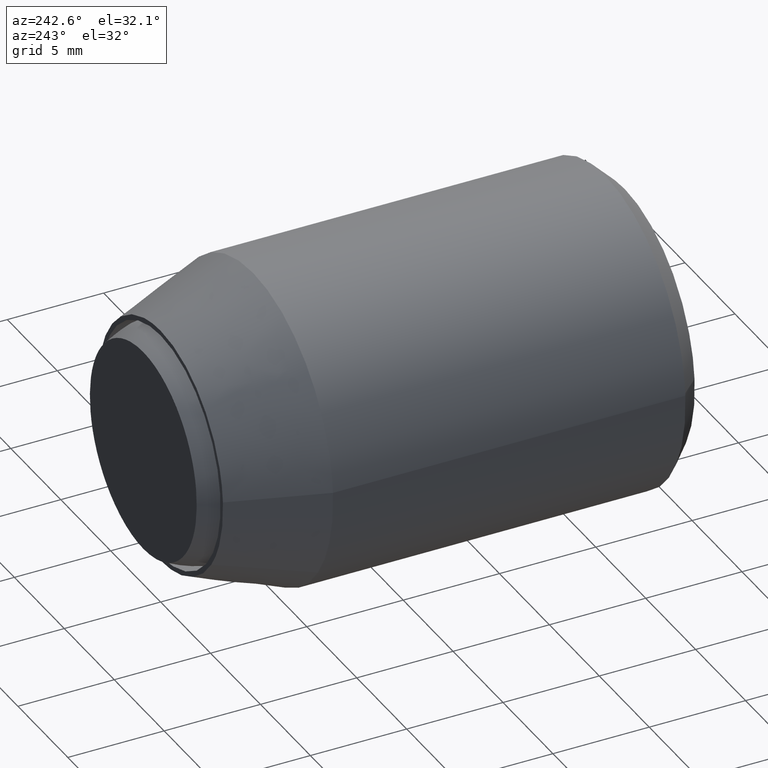
[diagram: clean part render]
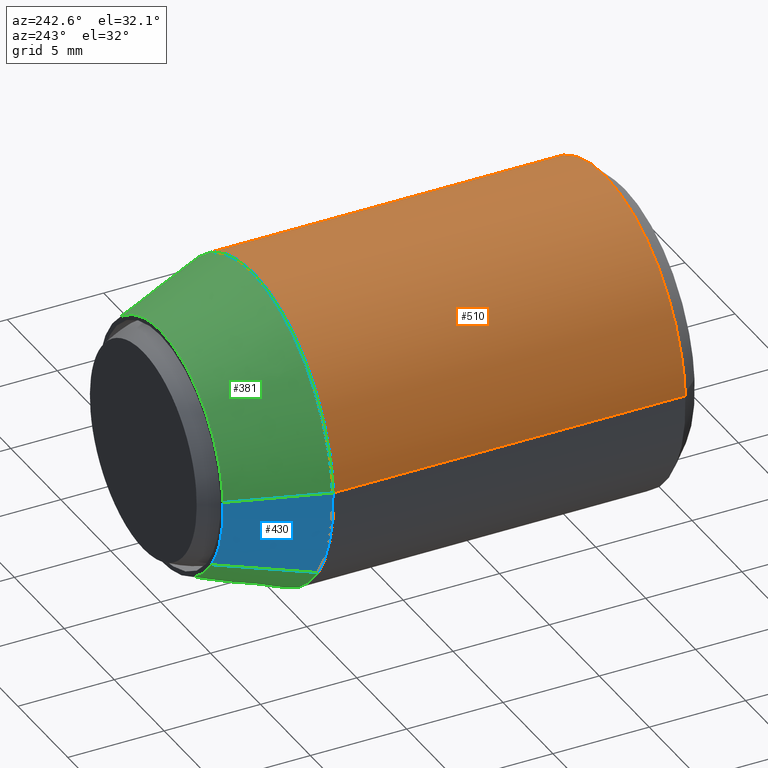
[diagram: same view with three faces highlighted in distinct colors, each labeled with its STEP entity id]
A machine part, auxiliary view with three faces highlighted in distinct colors.
Their STEP definitions:

[orange] entity #510 — the highlighted face is a freeform B-spline surface patch.
#305=CARTESIAN_POINT('',(-7.985078611291660,-4.808085996040576,0.488384631610957));
#306=VERTEX_POINT('',#305);
#312=CARTESIAN_POINT('',(0.0,-4.808085999999999,7.999999999999998));
#313=VERTEX_POINT('',#312);
#314=CARTESIAN_POINT('',(0.0,-4.808085999999999,7.999999999999998));
#315=CARTESIAN_POINT('',(-7.525652014319042,-4.808086000000000,7.999999999999999));
#316=CARTESIAN_POINT('',(-7.985078611291660,-4.808085996040576,0.488384631610957));
#324=(BOUNDED_CURVE()B_SPLINE_CURVE(2,(#314,#315,#316),.UNSPECIFIED.,.F.,.U.)B_SPLINE_CURVE_WITH_KNOTS((3,3),(0.500000000000000,0.739333041860781),.UNSPECIFIED.)CURVE()GEOMETRIC_REPRESENTATION_ITEM()RATIONAL_B_SPLINE_CURVE((1.0,0.719603900003925,0.976072212311532))REPRESENTATION_ITEM(''));
#325=EDGE_CURVE('',#313,#306,#324,.T.);
#327=CARTESIAN_POINT('',(7.947753822738545,-4.808085999999999,0.912802921302848));
#328=VERTEX_POINT('',#327);
#329=CARTESIAN_POINT('',(7.947753822738544,-4.808086000000000,0.912802921302848));
#330=CARTESIAN_POINT('',(7.133786211062851,-4.808085999999999,7.999999999999999));
#331=CARTESIAN_POINT('',(0.0,-4.808085999999999,7.999999999999998));
#339=(BOUNDED_CURVE()B_SPLINE_CURVE(2,(#329,#330,#331),.UNSPECIFIED.,.F.,.U.)B_SPLINE_CURVE_WITH_KNOTS((3,3),(0.269767704844007,0.500000000000000),.UNSPECIFIED.)CURVE()GEOMETRIC_REPRESENTATION_ITEM()RATIONAL_B_SPLINE_CURVE((0.957343837127389,0.730266087987810,1.0))REPRESENTATION_ITEM(''));
#340=EDGE_CURVE('',#328,#313,#339,.T.);
#431=CARTESIAN_POINT('',(7.947753547485708,-4.350788149999998,0.912805317922882));
#432=CARTESIAN_POINT('',(7.182521220688651,-4.350788149999996,7.575647679305657));
#433=CARTESIAN_POINT('',(0.488388316278856,-4.350788149999998,7.985078387374933));
#434=CARTESIAN_POINT('',(-7.496690071096078,-4.350788149999999,8.473466703653788));
#435=CARTESIAN_POINT('',(-7.985078387374934,-4.350788149999998,0.488388316278855));
#436=CARTESIAN_POINT('',(7.947753547485708,-23.568730296249999,0.912805317922882));
#437=CARTESIAN_POINT('',(7.182521220688651,-23.568730296249999,7.575647679305657));
#438=CARTESIAN_POINT('',(0.488388316278856,-23.568730296249999,7.985078387374933));
#439=CARTESIAN_POINT('',(-7.496690071096078,-23.568730296249999,8.473466703653788));
#440=CARTESIAN_POINT('',(-7.985078387374934,-23.568730296249999,0.488388316278855));
#448=(BOUNDED_SURFACE()B_SPLINE_SURFACE(2,1,((#431,#436),(#432,#437),(#433,#438),(#434,#439),(#435,#440)),.UNSPECIFIED.,.F.,.F.,.U.)B_SPLINE_SURFACE_WITH_KNOTS((3,2,3),(2,2),(0.0,11.664253916426350,24.919087912365391),(0.0,19.217942146250000),.UNSPECIFIED.)GEOMETRIC_REPRESENTATION_ITEM()RATIONAL_B_SPLINE_SURFACE(((0.938140952186599,0.938140952186599),(0.742253967444162,0.742253967444162),(1.0,1.0),(0.707106781186548,0.707106781186548),(1.0,1.0)))REPRESENTATION_ITEM('')SURFACE());
#449=CARTESIAN_POINT('',(7.947753547484348,-23.100000000000001,0.912805317934730));
#450=VERTEX_POINT('',#449);
#451=CARTESIAN_POINT('',(0.0,-23.100000000000001,7.999999999999998));
#452=VERTEX_POINT('',#451);
#453=CARTESIAN_POINT('',(7.947753547484348,-23.100000000000001,0.912805317934730));
#454=CARTESIAN_POINT('',(7.133784045729899,-23.099999999999994,7.999999999999999));
#455=CARTESIAN_POINT('',(0.0,-23.100000000000001,7.999999999999998));
#463=(BOUNDED_CURVE()B_SPLINE_CURVE(2,(#453,#454,#455),.UNSPECIFIED.,.F.,.U.)B_SPLINE_CURVE_WITH_KNOTS((3,3),(0.269767755877114,0.500000000000000),.UNSPECIFIED.)CURVE()GEOMETRIC_REPRESENTATION_ITEM()RATIONAL_B_SPLINE_CURVE((0.957343736459668,0.730266147776813,1.0))REPRESENTATION_ITEM(''));
#464=EDGE_CURVE('',#450,#452,#463,.T.);
#465=ORIENTED_EDGE('',*,*,#464,.F.);
#466=CARTESIAN_POINT('',(7.947753822738545,-4.808085999999999,0.912802921302848));
#467=CARTESIAN_POINT('',(7.947753547484348,-23.100000000000001,0.912805317934730));
#468=QUASI_UNIFORM_CURVE('',1,(#466,#467),.UNSPECIFIED.,.F.,.U.);
#469=EDGE_CURVE('',#328,#450,#468,.T.);
#470=ORIENTED_EDGE('',*,*,#469,.F.);
#471=ORIENTED_EDGE('',*,*,#340,.T.);
#472=ORIENTED_EDGE('',*,*,#325,.T.);
#473=CARTESIAN_POINT('',(-7.985078433277944,-23.099999999999991,0.488387565770133));
#474=VERTEX_POINT('',#473);
#475=CARTESIAN_POINT('',(-7.985078611291660,-4.808085996040576,0.488384631610957));
#476=CARTESIAN_POINT('',(-7.985078433277944,-23.099999999999991,0.488387565770133));
#477=QUASI_UNIFORM_CURVE('',1,(#475,#476),.UNSPECIFIED.,.F.,.U.);
#478=EDGE_CURVE('',#306,#474,#477,.T.);
#479=ORIENTED_EDGE('',*,*,#478,.T.);
#480=CARTESIAN_POINT('',(-7.975338669865066,-23.099999999999898,0.627672765823566));
#481=VERTEX_POINT('',#480);
#482=CARTESIAN_POINT('',(-7.975338669865066,-23.099999999999891,0.627672765823566));
#483=CARTESIAN_POINT('',(-7.980816346106935,-23.100000000000005,0.558072290014730));
#484=CARTESIAN_POINT('',(-7.985078433277944,-23.099999999999991,0.488387565770133));
#492=(BOUNDED_CURVE()B_SPLINE_CURVE(2,(#482,#483,#484),.UNSPECIFIED.,.F.,.U.)B_SPLINE_CURVE_WITH_KNOTS((3,3),(0.736331300632733,0.739332994676935),.UNSPECIFIED.)CURVE()GEOMETRIC_REPRESENTATION_ITEM()RATIONAL_B_SPLINE_CURVE((0.969723356171744,0.972855509409964,0.976072111187519))REPRESENTATION_ITEM(''));
#493=EDGE_CURVE('',#481,#474,#492,.T.);
#494=ORIENTED_EDGE('',*,*,#493,.F.);
#495=CARTESIAN_POINT('',(0.0,-23.100000000000001,7.999999999999998));
#496=CARTESIAN_POINT('',(-7.395123933264181,-23.099999999999998,7.999999999999999));
#497=CARTESIAN_POINT('',(-7.975338669865066,-23.099999999999898,0.627672765823566));
#505=(BOUNDED_CURVE()B_SPLINE_CURVE(2,(#495,#496,#497),.UNSPECIFIED.,.F.,.U.)B_SPLINE_CURVE_WITH_KNOTS((3,3),(0.500000000000000,0.736331300632733),.UNSPECIFIED.)CURVE()GEOMETRIC_REPRESENTATION_ITEM()RATIONAL_B_SPLINE_CURVE((1.0,0.723120658605237,0.969723356171744))REPRESENTATION_ITEM(''));
#506=EDGE_CURVE('',#452,#481,#505,.T.);
#507=ORIENTED_EDGE('',*,*,#506,.F.);
#508=EDGE_LOOP('',(#465,#470,#471,#472,#479,#494,#507));
#509=FACE_OUTER_BOUND('',#508,.T.);
#510=ADVANCED_FACE('',(#509),#448,.T.);

[blue] entity #430 — the highlighted face is a freeform B-spline surface patch.
#256=CARTESIAN_POINT('',(-5.068584063278948,0.000005180892441,-3.656765240256217));
#257=VERTEX_POINT('',#256);
#290=CARTESIAN_POINT('',(-6.238342490136722,-1.825602E-012,0.381553372102844));
#291=VERTEX_POINT('',#290);
#305=CARTESIAN_POINT('',(-7.985078611291660,-4.808085996040576,0.488384631610957));
#306=VERTEX_POINT('',#305);
#307=CARTESIAN_POINT('',(-6.238342490136722,-1.825602E-012,0.381553372102844));
#308=CARTESIAN_POINT('',(-7.985078611291660,-4.808085996040576,0.488384631610957));
#309=QUASI_UNIFORM_CURVE('',1,(#307,#308),.UNSPECIFIED.,.F.,.U.);
#310=EDGE_CURVE('',#291,#306,#309,.T.);
#359=CARTESIAN_POINT('',(-6.487788583764719,-4.808086000000214,-4.680662270702025));
#360=VERTEX_POINT('',#359);
#374=CARTESIAN_POINT('',(-5.068584063278948,0.000005180892441,-3.656765240256217));
#375=CARTESIAN_POINT('',(-6.487788583764719,-4.808086000000214,-4.680662270702025));
#376=QUASI_UNIFORM_CURVE('',1,(#374,#375),.UNSPECIFIED.,.F.,.U.);
#377=EDGE_CURVE('',#257,#360,#376,.T.);
#382=CARTESIAN_POINT('',(-6.194674092705709,0.120202150000000,0.378882498488205));
#383=CARTESIAN_POINT('',(-6.329993708723172,0.120202150000000,-1.833573666478589));
#384=CARTESIAN_POINT('',(-5.033104737249632,0.120202150000000,-3.631170027191690));
#385=CARTESIAN_POINT('',(-8.029838494741664,-4.931293203750000,0.491125961723621));
#386=CARTESIAN_POINT('',(-8.205246376662386,-4.931293203750000,-2.376767557048920));
#387=CARTESIAN_POINT('',(-6.524155679928798,-4.931293203749999,-4.706899576787980));
#395=(BOUNDED_SURFACE()B_SPLINE_SURFACE(2,1,((#382,#385),(#383,#386),(#384,#387)),.UNSPECIFIED.,.F.,.F.,.U.)B_SPLINE_SURFACE_WITH_KNOTS((3,3),(2,2),(0.0,5.850364563902502),(0.0,5.375689005745859),.UNSPECIFIED.)GEOMETRIC_REPRESENTATION_ITEM()RATIONAL_B_SPLINE_SURFACE(((1.0,1.0),(0.871126983722081,0.871126983722081),(0.855662221768731,0.855662221768731)))REPRESENTATION_ITEM('')SURFACE());
#396=CARTESIAN_POINT('',(-6.238342490136722,-1.825602E-012,0.381553372102844));
#397=CARTESIAN_POINT('',(-6.249999934591597,0.000000221597870,0.190954817806897));
#398=CARTESIAN_POINT('',(-6.249999867877746,0.000000447615944,0.000000095312304));
#399=CARTESIAN_POINT('',(-6.249999162420735,0.000002837614977,-2.019226043818301));
#400=CARTESIAN_POINT('',(-5.068584063278948,0.000005180892441,-3.656765240256217));
#408=(BOUNDED_CURVE()B_SPLINE_CURVE(2,(#396,#397,#398,#399,#400),.UNSPECIFIED.,.F.,.U.)B_SPLINE_CURVE_WITH_KNOTS((3,2,3),(0.739332962241418,0.750000000000000,0.850743018759153),.UNSPECIFIED.)CURVE()GEOMETRIC_REPRESENTATION_ITEM()RATIONAL_B_SPLINE_CURVE((0.976072041672022,0.987502787902737,1.0,0.881972211850590,0.859068229106279))REPRESENTATION_ITEM(''));
#409=EDGE_CURVE('',#291,#257,#408,.T.);
#410=ORIENTED_EDGE('',*,*,#409,.T.);
#411=ORIENTED_EDGE('',*,*,#377,.T.);
#412=CARTESIAN_POINT('',(-7.985078611291660,-4.808085996040576,0.488384631610957));
#413=CARTESIAN_POINT('',(-8.0,-4.808085999999999,0.244420258933266));
#414=CARTESIAN_POINT('',(-8.0,-4.808085999999999,-1.291960E-015));
#415=CARTESIAN_POINT('',(-8.0,-4.808085999999999,-2.584611029428961));
#416=CARTESIAN_POINT('',(-6.487788583764719,-4.808086000000214,-4.680662270702025));
#424=(BOUNDED_CURVE()B_SPLINE_CURVE(2,(#412,#413,#414,#415,#416),.UNSPECIFIED.,.F.,.U.)B_SPLINE_CURVE_WITH_KNOTS((3,2,3),(0.739333041860781,0.750000000000000,0.850743050382080),.UNSPECIFIED.)CURVE()GEOMETRIC_REPRESENTATION_ITEM()RATIONAL_B_SPLINE_CURVE((0.976072212311532,0.987502881182623,1.0,0.881972174802028,0.859068214727308))REPRESENTATION_ITEM(''));
#425=EDGE_CURVE('',#306,#360,#424,.T.);
#426=ORIENTED_EDGE('',*,*,#425,.F.);
#427=ORIENTED_EDGE('',*,*,#310,.F.);
#428=EDGE_LOOP('',(#410,#411,#426,#427));
#429=FACE_OUTER_BOUND('',#428,.T.);
#430=ADVANCED_FACE('',(#429),#395,.T.);

[green] entity #381 — the highlighted face is a freeform B-spline surface patch.
#230=CARTESIAN_POINT('',(-5.033104737249632,0.120202150000000,-3.631170027191690));
#231=CARTESIAN_POINT('',(-3.313123014859355,0.120202150000000,-6.015208254572740));
#232=CARTESIAN_POINT('',(-0.378882498488206,0.120202150000000,-6.194674092705710));
#233=CARTESIAN_POINT('',(5.815791594217503,0.120202150000000,-6.573556591193916));
#234=CARTESIAN_POINT('',(6.194674092705709,0.120202150000000,-0.378882498488207));
#235=CARTESIAN_POINT('',(6.573556591193915,0.120202150000000,5.815791594217502));
#236=CARTESIAN_POINT('',(0.378882498488206,0.120202150000000,6.194674092705708));
#237=CARTESIAN_POINT('',(-5.815791594217503,0.120202150000000,6.573556591193914));
#238=CARTESIAN_POINT('',(-6.194674092705709,0.120202150000000,0.378882498488205));
#239=CARTESIAN_POINT('',(-6.524155679928798,-4.931293203749999,-4.706899576787980));
#240=CARTESIAN_POINT('',(-4.294631537413486,-4.931293203750000,-7.797206127975497));
#241=CARTESIAN_POINT('',(-0.491125961723622,-4.931293203750000,-8.029838494741666));
#242=CARTESIAN_POINT('',(7.538712533018043,-4.931293203750001,-8.520964456465288));
#243=CARTESIAN_POINT('',(8.029838494741664,-4.931293203750000,-0.491125961723623));
#244=CARTESIAN_POINT('',(8.520964456465288,-4.931293203750001,7.538712533018041));
#245=CARTESIAN_POINT('',(0.491125961723622,-4.931293203750000,8.029838494741663));
#246=CARTESIAN_POINT('',(-7.538712533018043,-4.931293203750001,8.520964456465284));
#247=CARTESIAN_POINT('',(-8.029838494741664,-4.931293203750000,0.491125961723621));
#255=(BOUNDED_SURFACE()B_SPLINE_SURFACE(2,1,((#230,#239),(#231,#240),(#232,#241),(#233,#242),(#234,#243),(#235,#244),(#236,#245),(#237,#246),(#238,#247)),.UNSPECIFIED.,.F.,.F.,.U.)B_SPLINE_SURFACE_WITH_KNOTS((3,2,2,2,3),(2,2),(0.0,7.464314790066237,20.793448343755941,34.122581897445663,47.451715451135371),(0.0,5.375689005745859),.UNSPECIFIED.)GEOMETRIC_REPRESENTATION_ITEM()RATIONAL_B_SPLINE_SURFACE(((0.855662221768731,0.855662221768731),(0.835979797464467,0.835979797464467),(1.0,1.0),(0.707106781186548,0.707106781186548),(1.0,1.0),(0.707106781186548,0.707106781186548),(1.0,1.0),(0.707106781186548,0.707106781186548),(1.0,1.0)))REPRESENTATION_ITEM('')SURFACE());
#256=CARTESIAN_POINT('',(-5.068584063278948,0.000005180892441,-3.656765240256217));
#257=VERTEX_POINT('',#256);
#258=CARTESIAN_POINT('',(0.0,0.0,-6.250000000000001));
#259=VERTEX_POINT('',#258);
#260=CARTESIAN_POINT('',(-5.068584063278948,0.000005180892441,-3.656765240256217));
#261=CARTESIAN_POINT('',(-3.197678362424754,0.000002590446221,-6.249999448357617));
#262=CARTESIAN_POINT('',(0.0,0.0,-6.250000000000001));
#270=(BOUNDED_CURVE()B_SPLINE_CURVE(2,(#260,#261,#262),.UNSPECIFIED.,.F.,.U.)B_SPLINE_CURVE_WITH_KNOTS((3,3),(0.850743018759153,1.0),.UNSPECIFIED.)CURVE()GEOMETRIC_REPRESENTATION_ITEM()RATIONAL_B_SPLINE_CURVE((0.859068229106279,0.825134569335957,1.0))REPRESENTATION_ITEM(''));
#271=EDGE_CURVE('',#257,#259,#270,.T.);
#272=ORIENTED_EDGE('',*,*,#271,.T.);
#273=CARTESIAN_POINT('',(0.0,0.0,6.249999999999999));
#274=VERTEX_POINT('',#273);
#275=CARTESIAN_POINT('',(0.0,0.0,-6.250000000000001));
#276=CARTESIAN_POINT('',(6.249999999999999,0.0,-6.250000000000002));
#277=CARTESIAN_POINT('',(6.250000000000000,0.0,-1.291960E-015));
#278=CARTESIAN_POINT('',(6.249999999999999,0.0,6.249999999999999));
#279=CARTESIAN_POINT('',(0.0,0.0,6.249999999999999));
#287=(BOUNDED_CURVE()B_SPLINE_CURVE(2,(#275,#276,#277,#278,#279),.UNSPECIFIED.,.F.,.U.)B_SPLINE_CURVE_WITH_KNOTS((3,2,3),(0.0,0.250000000000000,0.500000000000000),.UNSPECIFIED.)CURVE()GEOMETRIC_REPRESENTATION_ITEM()RATIONAL_B_SPLINE_CURVE((1.0,0.707106781186547,1.0,0.707106781186547,1.0))REPRESENTATION_ITEM(''));
#288=EDGE_CURVE('',#259,#274,#287,.T.);
#289=ORIENTED_EDGE('',*,*,#288,.T.);
#290=CARTESIAN_POINT('',(-6.238342490136722,-1.825602E-012,0.381553372102844));
#291=VERTEX_POINT('',#290);
#292=CARTESIAN_POINT('',(0.0,0.0,6.249999999999999));
#293=CARTESIAN_POINT('',(-5.879412918141829,0.0,6.249999999999999));
#294=CARTESIAN_POINT('',(-6.238342490136722,-1.825602E-012,0.381553372102844));
#302=(BOUNDED_CURVE()B_SPLINE_CURVE(2,(#292,#293,#294),.UNSPECIFIED.,.F.,.U.)B_SPLINE_CURVE_WITH_KNOTS((3,3),(0.500000000000000,0.739332962241419),.UNSPECIFIED.)CURVE()GEOMETRIC_REPRESENTATION_ITEM()RATIONAL_B_SPLINE_CURVE((1.0,0.719603993283810,0.976072041672024))REPRESENTATION_ITEM(''));
#303=EDGE_CURVE('',#274,#291,#302,.T.);
#304=ORIENTED_EDGE('',*,*,#303,.T.);
#305=CARTESIAN_POINT('',(-7.985078611291660,-4.808085996040576,0.488384631610957));
#306=VERTEX_POINT('',#305);
#307=CARTESIAN_POINT('',(-6.238342490136722,-1.825602E-012,0.381553372102844));
#308=CARTESIAN_POINT('',(-7.985078611291660,-4.808085996040576,0.488384631610957));
#309=QUASI_UNIFORM_CURVE('',1,(#307,#308),.UNSPECIFIED.,.F.,.U.);
#310=EDGE_CURVE('',#291,#306,#309,.T.);
#311=ORIENTED_EDGE('',*,*,#310,.T.);
#312=CARTESIAN_POINT('',(0.0,-4.808085999999999,7.999999999999998));
#313=VERTEX_POINT('',#312);
#314=CARTESIAN_POINT('',(0.0,-4.808085999999999,7.999999999999998));
#315=CARTESIAN_POINT('',(-7.525652014319042,-4.808086000000000,7.999999999999999));
#316=CARTESIAN_POINT('',(-7.985078611291660,-4.808085996040576,0.488384631610957));
#324=(BOUNDED_CURVE()B_SPLINE_CURVE(2,(#314,#315,#316),.UNSPECIFIED.,.F.,.U.)B_SPLINE_CURVE_WITH_KNOTS((3,3),(0.500000000000000,0.739333041860781),.UNSPECIFIED.)CURVE()GEOMETRIC_REPRESENTATION_ITEM()RATIONAL_B_SPLINE_CURVE((1.0,0.719603900003925,0.976072212311532))REPRESENTATION_ITEM(''));
#325=EDGE_CURVE('',#313,#306,#324,.T.);
#326=ORIENTED_EDGE('',*,*,#325,.F.);
#327=CARTESIAN_POINT('',(7.947753822738545,-4.808085999999999,0.912802921302848));
#328=VERTEX_POINT('',#327);
#329=CARTESIAN_POINT('',(7.947753822738544,-4.808086000000000,0.912802921302848));
#330=CARTESIAN_POINT('',(7.133786211062851,-4.808085999999999,7.999999999999999));
#331=CARTESIAN_POINT('',(0.0,-4.808085999999999,7.999999999999998));
#339=(BOUNDED_CURVE()B_SPLINE_CURVE(2,(#329,#330,#331),.UNSPECIFIED.,.F.,.U.)B_SPLINE_CURVE_WITH_KNOTS((3,3),(0.269767704844007,0.500000000000000),.UNSPECIFIED.)CURVE()GEOMETRIC_REPRESENTATION_ITEM()RATIONAL_B_SPLINE_CURVE((0.957343837127389,0.730266087987810,1.0))REPRESENTATION_ITEM(''));
#340=EDGE_CURVE('',#328,#313,#339,.T.);
#341=ORIENTED_EDGE('',*,*,#340,.F.);
#342=CARTESIAN_POINT('',(0.0,-4.808085999999999,-8.000000000000002));
#343=VERTEX_POINT('',#342);
#344=CARTESIAN_POINT('',(0.0,-4.808085999999999,-8.000000000000002));
#345=CARTESIAN_POINT('',(8.0,-4.808086000000000,-8.000000000000002));
#346=CARTESIAN_POINT('',(8.0,-4.808085999999999,-1.291960E-015));
#347=CARTESIAN_POINT('',(8.0,-4.808086000000000,0.457896670063406));
#348=CARTESIAN_POINT('',(7.947753822738544,-4.808086000000000,0.912802921302848));
#356=(BOUNDED_CURVE()B_SPLINE_CURVE(2,(#344,#345,#346,#347,#348),.UNSPECIFIED.,.F.,.U.)B_SPLINE_CURVE_WITH_KNOTS((3,2,3),(0.0,0.250000000000000,0.269767704844007),.UNSPECIFIED.)CURVE()GEOMETRIC_REPRESENTATION_ITEM()RATIONAL_B_SPLINE_CURVE((1.0,0.707106781186548,1.0,0.976840693198738,0.957343837127389))REPRESENTATION_ITEM(''));
#357=EDGE_CURVE('',#343,#328,#356,.T.);
#358=ORIENTED_EDGE('',*,*,#357,.F.);
#359=CARTESIAN_POINT('',(-6.487788583764719,-4.808086000000214,-4.680662270702025));
#360=VERTEX_POINT('',#359);
#361=CARTESIAN_POINT('',(-6.487788583764719,-4.808086000000214,-4.680662270702026));
#362=CARTESIAN_POINT('',(-4.093028231657743,-4.808085999999999,-8.000000000000002));
#363=CARTESIAN_POINT('',(0.0,-4.808085999999999,-8.000000000000002));
#371=(BOUNDED_CURVE()B_SPLINE_CURVE(2,(#361,#362,#363),.UNSPECIFIED.,.F.,.U.)B_SPLINE_CURVE_WITH_KNOTS((3,3),(0.850743050382079,1.0),.UNSPECIFIED.)CURVE()GEOMETRIC_REPRESENTATION_ITEM()RATIONAL_B_SPLINE_CURVE((0.859068214727309,0.825134606384519,1.0))REPRESENTATION_ITEM(''));
#372=EDGE_CURVE('',#360,#343,#371,.T.);
#373=ORIENTED_EDGE('',*,*,#372,.F.);
#374=CARTESIAN_POINT('',(-5.068584063278948,0.000005180892441,-3.656765240256217));
#375=CARTESIAN_POINT('',(-6.487788583764719,-4.808086000000214,-4.680662270702025));
#376=QUASI_UNIFORM_CURVE('',1,(#374,#375),.UNSPECIFIED.,.F.,.U.);
#377=EDGE_CURVE('',#257,#360,#376,.T.);
#378=ORIENTED_EDGE('',*,*,#377,.F.);
#379=EDGE_LOOP('',(#272,#289,#304,#311,#326,#341,#358,#373,#378));
#380=FACE_OUTER_BOUND('',#379,.T.);
#381=ADVANCED_FACE('',(#380),#255,.T.);